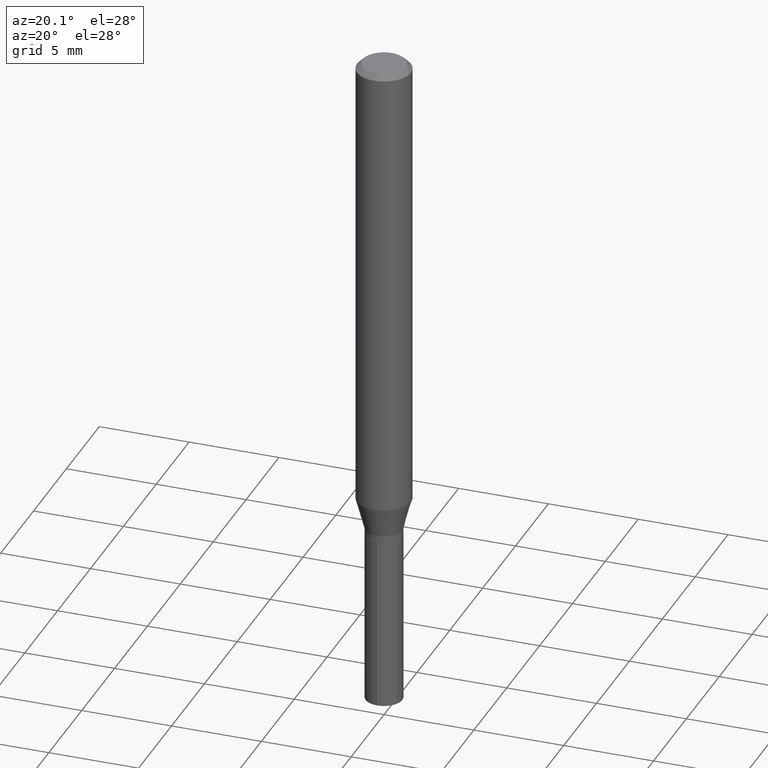
[diagram: clean part render]
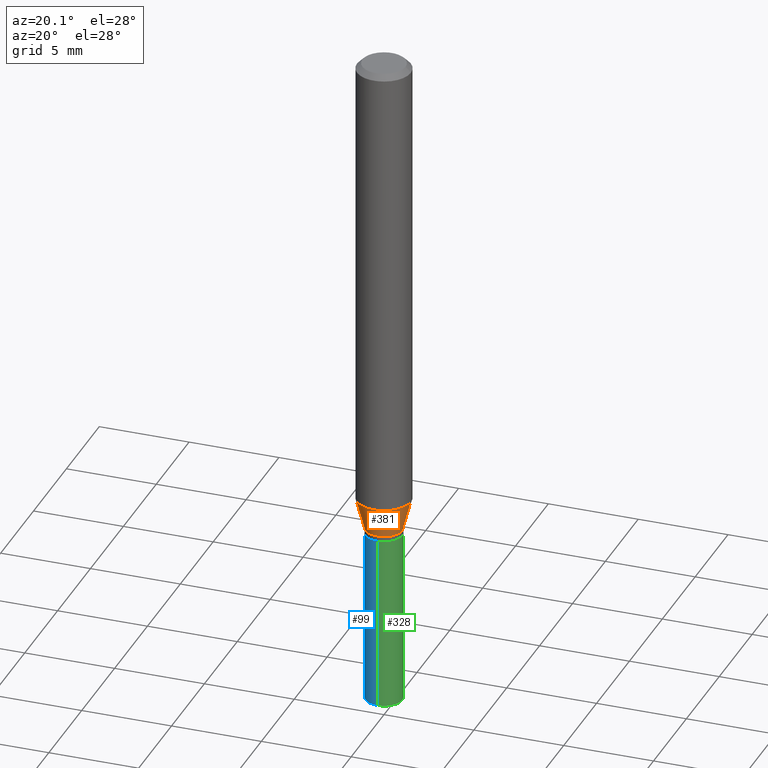
[diagram: same view with three faces highlighted in distinct colors, each labeled with its STEP entity id]
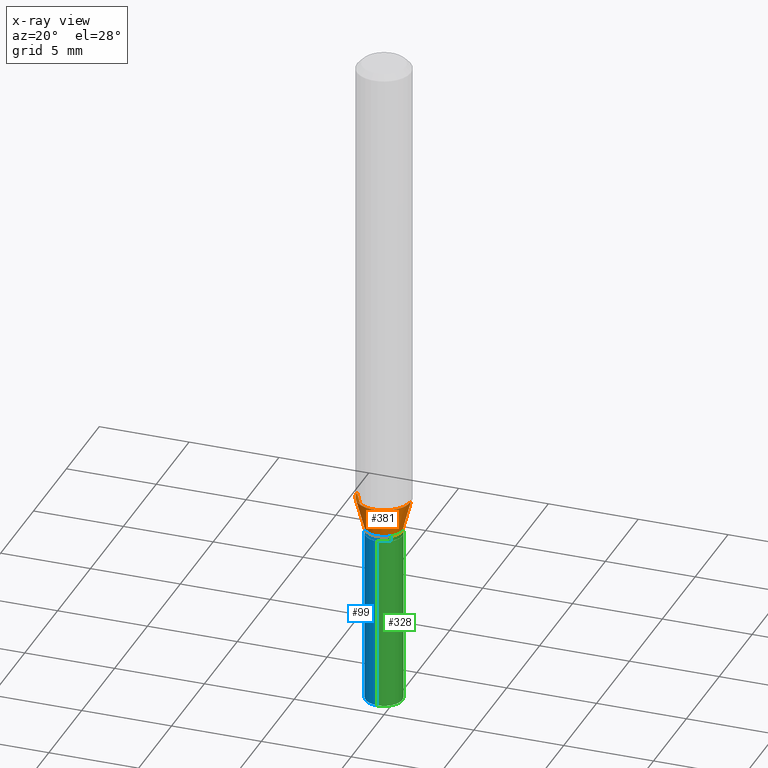
[diagram: x-ray of the same camera — body ghosted, the three highlighted faces saturated]
A machine part, auxiliary view with three faces highlighted in distinct colors.
The next image is the same camera in x-ray (body ghosted, the three faces saturated) — at least one of them is partly hidden behind the body in this view.
Their STEP definitions:

[orange] entity #381 — the highlighted conical surface has half-angle 15 deg.
#4 = VERTEX_POINT ( 'NONE', #478 ) ;
#22 = CARTESIAN_POINT ( 'NONE',  ( 0.04014999999999999819, -4.059894500806808838E-15, -1.082500000000000018 ) ) ;
#30 = CARTESIAN_POINT ( 'NONE',  ( 0.05905000000000013016, -3.945598204735519774E-15, -1.011964239736947935 ) ) ;
#63 = EDGE_LOOP ( 'NONE', ( #241, #247, #190, #232 ) ) ;
#102 = VERTEX_POINT ( 'NONE', #22 ) ;
#108 = CARTESIAN_POINT ( 'NONE',  ( 2.474726981251563190E-29, -3.533254258618144854E-15, -1.011964239736947935 ) ) ;
#113 = LINE ( 'NONE', #192, #250 ) ;
#134 = AXIS2_PLACEMENT_3D ( 'NONE', #108, #448, #486 ) ;
#166 = VECTOR ( 'NONE', #298, 39.37007874015748143 ) ;
#179 = LINE ( 'NONE', #343, #166 ) ;
#190 = ORIENTED_EDGE ( 'NONE', *, *, #293, .T. ) ;
#191 = EDGE_CURVE ( 'NONE', #306, #194, #371, .T. ) ;
#192 = CARTESIAN_POINT ( 'NONE',  ( -0.04014999999999999819, -3.494245640890025145E-15, -1.082500000000000018 ) ) ;
#194 = VERTEX_POINT ( 'NONE', #30 ) ;
#198 = CARTESIAN_POINT ( 'NONE',  ( 2.647219982695410164E-29, -3.779528549297705110E-15, -1.082500000000000018 ) ) ;
#217 = EDGE_CURVE ( 'NONE', #4, #102, #238, .T. ) ;
#232 = ORIENTED_EDGE ( 'NONE', *, *, #191, .F. ) ;
#238 = CIRCLE ( 'NONE', #327, 0.04014999999999999819 ) ;
#241 = ORIENTED_EDGE ( 'NONE', *, *, #342, .F. ) ;
#247 = ORIENTED_EDGE ( 'NONE', *, *, #217, .T. ) ;
#250 = VECTOR ( 'NONE', #393, 39.37007874015748143 ) ;
#253 = DIRECTION ( 'NONE',  ( -2.445468806185136597E-29, 3.491481338843145583E-15, 1.000000000000000000 ) ) ;
#254 = FACE_OUTER_BOUND ( 'NONE', #63, .T. ) ;
#256 = CARTESIAN_POINT ( 'NONE',  ( 2.647219982695410164E-29, -3.779528549297705110E-15, -1.082500000000000018 ) ) ;
#262 = DIRECTION ( 'NONE',  ( -2.445468806185136597E-29, 3.491481338843145583E-15, 1.000000000000000000 ) ) ;
#281 = AXIS2_PLACEMENT_3D ( 'NONE', #198, #253, #324 ) ;
#293 = EDGE_CURVE ( 'NONE', #102, #194, #179, .T. ) ;
#298 = DIRECTION ( 'NONE',  ( 0.2588190451025214611, 1.565188264969620982E-15, 0.9659258262890679791 ) ) ;
#306 = VERTEX_POINT ( 'NONE', #308 ) ;
#308 = CARTESIAN_POINT ( 'NONE',  ( -0.05905000000000013016, -3.113678773151804967E-15, -1.011964239736947935 ) ) ;
#324 = DIRECTION ( 'NONE',  ( 1.000000000000000000, -6.982962677686261189E-15, 0.000000000000000000 ) ) ;
#327 = AXIS2_PLACEMENT_3D ( 'NONE', #256, #262, #411 ) ;
#342 = EDGE_CURVE ( 'NONE', #4, #306, #113, .T. ) ;
#343 = CARTESIAN_POINT ( 'NONE',  ( 0.04014999999999999819, -4.059894500806808838E-15, -1.082500000000000018 ) ) ;
#371 = CIRCLE ( 'NONE', #134, 0.05905000000000013016 ) ;
#381 = ADVANCED_FACE ( 'NONE', ( #254 ), #418, .T. ) ;
#393 = DIRECTION ( 'NONE',  ( -0.2588190451025214611, 5.211531920934550253E-15, 0.9659258262890679791 ) ) ;
#411 = DIRECTION ( 'NONE',  ( 1.000000000000000000, -6.982962677686261189E-15, 0.000000000000000000 ) ) ;
#418 = CONICAL_SURFACE ( 'NONE', #281, 0.04014999999999999819, 0.2617993877991501850 ) ;
#448 = DIRECTION ( 'NONE',  ( -2.445468806185136597E-29, 3.491481338843145583E-15, 1.000000000000000000 ) ) ;
#478 = CARTESIAN_POINT ( 'NONE',  ( -0.04014999999999999819, -3.514321658588372830E-15, -1.082500000000000018 ) ) ;
#486 = DIRECTION ( 'NONE',  ( 1.000000000000000000, -6.982962677686265133E-15, 0.000000000000000000 ) ) ;

[blue] entity #99 — the highlighted cylindrical surface (edge-blend (fillet) strip) has radius 1.0198 mm, axis along (-0, 0, 1).
#1 = DIRECTION ( 'NONE',  ( -2.445458899330790108E-29, 3.491495526022433599E-15, 1.000000000000000000 ) ) ;
#24 = CARTESIAN_POINT ( 'NONE',  ( 2.852829084077163515E-16, 0.04014999999999484259, -1.477377747525077112 ) ) ;
#38 = VERTEX_POINT ( 'NONE', #433 ) ;
#66 = FACE_OUTER_BOUND ( 'NONE', #126, .T. ) ;
#81 = AXIS2_PLACEMENT_3D ( 'NONE', #285, #367, #480 ) ;
#86 = ORIENTED_EDGE ( 'NONE', *, *, #138, .F. ) ;
#99 = ADVANCED_FACE ( 'NONE', ( #66 ), #207, .T. ) ;
#104 = VERTEX_POINT ( 'NONE', #24 ) ;
#107 = DIRECTION ( 'NONE',  ( -2.445458899330790108E-29, 3.491495526022433205E-15, 1.000000000000000000 ) ) ;
#123 = ORIENTED_EDGE ( 'NONE', *, *, #462, .T. ) ;
#126 = EDGE_LOOP ( 'NONE', ( #473, #123, #354, #86 ) ) ;
#138 = EDGE_CURVE ( 'NONE', #38, #330, #395, .T. ) ;
#145 = DIRECTION ( 'NONE',  ( -6.982962677686266711E-15, -1.000000000000000000, 6.804104591940879672E-15 ) ) ;
#150 = LINE ( 'NONE', #260, #152 ) ;
#152 = VECTOR ( 'NONE', #414, 39.37007874015748143 ) ;
#182 = CARTESIAN_POINT ( 'NONE',  ( 3.612877403410558045E-29, -5.158242267861175196E-15, -1.477377747525076890 ) ) ;
#207 = CYLINDRICAL_SURFACE ( 'NONE', #81, 0.04014999999999999819 ) ;
#213 = CIRCLE ( 'NONE', #398, 0.04014999999999999819 ) ;
#222 = CARTESIAN_POINT ( 'NONE',  ( 2.852829084077068851E-16, 0.04014999999999617486, -1.094500000000000028 ) ) ;
#235 = CARTESIAN_POINT ( 'NONE',  ( -2.803659515090768085E-16, -0.04015000000000382152, -1.094499999999999806 ) ) ;
#260 = CARTESIAN_POINT ( 'NONE',  ( -2.803659515090768085E-16, -0.04015000000000382152, -1.094499999999999806 ) ) ;
#285 = CARTESIAN_POINT ( 'NONE',  ( 2.676565608369631794E-29, -3.821426325363822773E-15, -1.094499999999999806 ) ) ;
#288 = EDGE_CURVE ( 'NONE', #104, #38, #305, .T. ) ;
#301 = EDGE_CURVE ( 'NONE', #470, #330, #150, .T. ) ;
#305 = LINE ( 'NONE', #222, #474 ) ;
#307 = CARTESIAN_POINT ( 'NONE',  ( -2.803659515090673914E-16, -0.04015000000000516073, -1.477377747525076446 ) ) ;
#330 = VERTEX_POINT ( 'NONE', #235 ) ;
#354 = ORIENTED_EDGE ( 'NONE', *, *, #301, .T. ) ;
#355 = DIRECTION ( 'NONE',  ( -6.982962677686266711E-15, -1.000000000000000000, 3.402052295970439836E-15 ) ) ;
#367 = DIRECTION ( 'NONE',  ( -2.445458899330790108E-29, 3.491495526022433205E-15, 1.000000000000000000 ) ) ;
#370 = AXIS2_PLACEMENT_3D ( 'NONE', #441, #107, #355 ) ;
#395 = CIRCLE ( 'NONE', #370, 0.04014999999999999819 ) ;
#398 = AXIS2_PLACEMENT_3D ( 'NONE', #182, #409, #145 ) ;
#409 = DIRECTION ( 'NONE',  ( -2.445458899330790108E-29, 3.491495526022433205E-15, 1.000000000000000000 ) ) ;
#414 = DIRECTION ( 'NONE',  ( -2.445458899330790108E-29, 3.491495526022433599E-15, 1.000000000000000000 ) ) ;
#433 = CARTESIAN_POINT ( 'NONE',  ( 2.852829084077163515E-16, 0.04014999999999617486, -1.094500000000000028 ) ) ;
#441 = CARTESIAN_POINT ( 'NONE',  ( 2.676565608369631794E-29, -3.821426325363822773E-15, -1.094499999999999806 ) ) ;
#462 = EDGE_CURVE ( 'NONE', #104, #470, #213, .T. ) ;
#470 = VERTEX_POINT ( 'NONE', #307 ) ;
#473 = ORIENTED_EDGE ( 'NONE', *, *, #288, .F. ) ;
#474 = VECTOR ( 'NONE', #1, 39.37007874015748143 ) ;
#480 = DIRECTION ( 'NONE',  ( -6.982962677686266711E-15, -1.000000000000000000, 3.402052295970439836E-15 ) ) ;

[green] entity #328 — the highlighted cylindrical surface (edge-blend (fillet) strip) has radius 1.0198 mm, axis along (-0, 0, 1).
#1 = DIRECTION ( 'NONE',  ( -2.445458899330790108E-29, 3.491495526022433599E-15, 1.000000000000000000 ) ) ;
#8 = CARTESIAN_POINT ( 'NONE',  ( 2.676565608369631794E-29, -3.821426325363822773E-15, -1.094499999999999806 ) ) ;
#12 = DIRECTION ( 'NONE',  ( -2.445458899330790108E-29, 3.491495526022433205E-15, 1.000000000000000000 ) ) ;
#24 = CARTESIAN_POINT ( 'NONE',  ( 2.852829084077163515E-16, 0.04014999999999484259, -1.477377747525077112 ) ) ;
#38 = VERTEX_POINT ( 'NONE', #433 ) ;
#56 = EDGE_CURVE ( 'NONE', #330, #38, #117, .T. ) ;
#68 = CARTESIAN_POINT ( 'NONE',  ( 2.676565608369631794E-29, -3.821426325363822773E-15, -1.094499999999999806 ) ) ;
#88 = EDGE_CURVE ( 'NONE', #470, #104, #175, .T. ) ;
#104 = VERTEX_POINT ( 'NONE', #24 ) ;
#115 = DIRECTION ( 'NONE',  ( -6.982962677686266711E-15, -1.000000000000000000, 3.402052295970439836E-15 ) ) ;
#117 = CIRCLE ( 'NONE', #159, 0.04014999999999999819 ) ;
#125 = CARTESIAN_POINT ( 'NONE',  ( 3.612877403410558045E-29, -5.158242267861175196E-15, -1.477377747525076890 ) ) ;
#150 = LINE ( 'NONE', #260, #152 ) ;
#152 = VECTOR ( 'NONE', #414, 39.37007874015748143 ) ;
#159 = AXIS2_PLACEMENT_3D ( 'NONE', #68, #12, #161 ) ;
#161 = DIRECTION ( 'NONE',  ( -6.982962677686266711E-15, -1.000000000000000000, 3.402052295970439836E-15 ) ) ;
#175 = CIRCLE ( 'NONE', #314, 0.04014999999999999819 ) ;
#176 = DIRECTION ( 'NONE',  ( -2.445458899330790108E-29, 3.491495526022433205E-15, 1.000000000000000000 ) ) ;
#208 = DIRECTION ( 'NONE',  ( -6.982962677686266711E-15, -1.000000000000000000, 6.804104591940879672E-15 ) ) ;
#222 = CARTESIAN_POINT ( 'NONE',  ( 2.852829084077068851E-16, 0.04014999999999617486, -1.094500000000000028 ) ) ;
#225 = ORIENTED_EDGE ( 'NONE', *, *, #288, .T. ) ;
#235 = CARTESIAN_POINT ( 'NONE',  ( -2.803659515090768085E-16, -0.04015000000000382152, -1.094499999999999806 ) ) ;
#260 = CARTESIAN_POINT ( 'NONE',  ( -2.803659515090768085E-16, -0.04015000000000382152, -1.094499999999999806 ) ) ;
#275 = DIRECTION ( 'NONE',  ( -2.445458899330790108E-29, 3.491495526022433205E-15, 1.000000000000000000 ) ) ;
#277 = FACE_OUTER_BOUND ( 'NONE', #388, .T. ) ;
#288 = EDGE_CURVE ( 'NONE', #104, #38, #305, .T. ) ;
#291 = AXIS2_PLACEMENT_3D ( 'NONE', #8, #275, #115 ) ;
#301 = EDGE_CURVE ( 'NONE', #470, #330, #150, .T. ) ;
#305 = LINE ( 'NONE', #222, #474 ) ;
#307 = CARTESIAN_POINT ( 'NONE',  ( -2.803659515090673914E-16, -0.04015000000000516073, -1.477377747525076446 ) ) ;
#314 = AXIS2_PLACEMENT_3D ( 'NONE', #125, #176, #208 ) ;
#328 = ADVANCED_FACE ( 'NONE', ( #277 ), #452, .T. ) ;
#329 = ORIENTED_EDGE ( 'NONE', *, *, #301, .F. ) ;
#330 = VERTEX_POINT ( 'NONE', #235 ) ;
#388 = EDGE_LOOP ( 'NONE', ( #421, #225, #390, #329 ) ) ;
#390 = ORIENTED_EDGE ( 'NONE', *, *, #56, .F. ) ;
#414 = DIRECTION ( 'NONE',  ( -2.445458899330790108E-29, 3.491495526022433599E-15, 1.000000000000000000 ) ) ;
#421 = ORIENTED_EDGE ( 'NONE', *, *, #88, .T. ) ;
#433 = CARTESIAN_POINT ( 'NONE',  ( 2.852829084077163515E-16, 0.04014999999999617486, -1.094500000000000028 ) ) ;
#452 = CYLINDRICAL_SURFACE ( 'NONE', #291, 0.04014999999999999819 ) ;
#470 = VERTEX_POINT ( 'NONE', #307 ) ;
#474 = VECTOR ( 'NONE', #1, 39.37007874015748143 ) ;